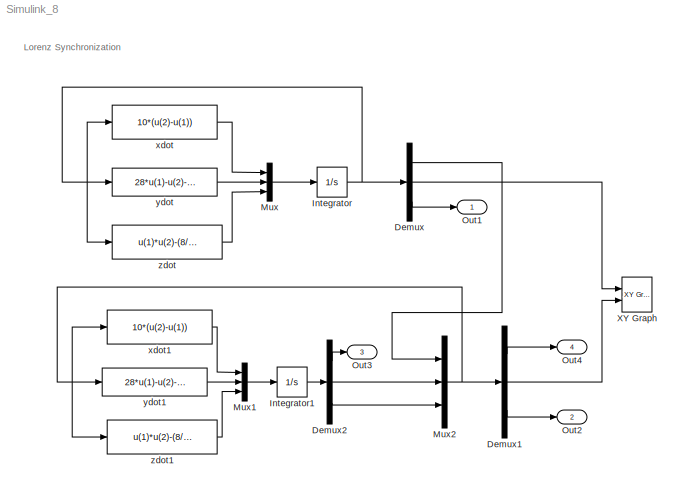
MODEL Simulink_8
KIND model
BLOCK [Demux] Demux
  Outputs = 3
  Ports = [1, 3]
  SID = 1
BLOCK [Demux] Demux1
  Outputs = 3
  Ports = [1, 3]
  SID = 2
BLOCK [Demux] Demux2
  Outputs = 3
  Ports = [1, 3]
  SID = 3
BLOCK [Integrator] Integrator
  InitialCondition = [15 20 30]
  LowerSaturationLimit = 0
  Ports = [1, 1]
  SID = 4
  UpperSaturationLimit = 50
BLOCK [Integrator] Integrator1
  InitialCondition = [17 23 33]
  LowerSaturationLimit = 0
  Ports = [1, 1]
  SID = 5
  UpperSaturationLimit = 50
BLOCK [Mux] Mux
  DisplayOption = bar
  Inputs = 3
  Ports = [3, 1]
  SID = 6
BLOCK [Mux] Mux1
  DisplayOption = bar
  Inputs = 3
  Ports = [3, 1]
  SID = 7
BLOCK [Mux] Mux2
  DisplayOption = bar
  Inputs = 3
  Ports = [3, 1]
  SID = 8
BLOCK [Outport] Out1
  IconDisplay = Port number
  SID = 16
BLOCK [Outport] Out2
  IconDisplay = Port number
  Port = 2
  SID = 17
BLOCK [Outport] Out3
  IconDisplay = Port number
  Port = 3
  SID = 18
BLOCK [Outport] Out4
  IconDisplay = Port number
  Port = 4
  SID = 19
BLOCK [Reference] XY Graph  REF=simulink/Sinks/XY Graph
  Ports = [2]
  SID = 9
  SourceBlock = simulink/Sinks/XY Graph
  SourceProductBaseCode = SL
  SourceProductName = Simulink
  SourceType = XY scope.
  st = -1
  xmax = 50
  xmin = -50
  ymax = 50
  ymin = -50
BLOCK [Fcn] xdot
  Description = sdhdkbkdf
  Expr = 10*(u(2)-u(1))
  SID = 10
BLOCK [Fcn] xdot1
  Description = sdhdkbkdf
  Expr = 10*(u(2)-u(1))
  SID = 11
BLOCK [Fcn] ydot
  Expr = 28*u(1)-u(2)-u(1)*u(3)
  SID = 12
BLOCK [Fcn] ydot1
  Expr = 28*u(1)-u(2)-u(1)*u(3)
  SID = 13
BLOCK [Fcn] zdot
  Expr = u(1)*u(2)-(8/3)*u(3)
  SID = 14
BLOCK [Fcn] zdot1
  Expr = u(1)*u(2)-(8/3)*u(3)
  SID = 15
ANNOTATION (root): Lorenz Synchronization
LINE Demux1:1 -> Out4:1
LINE Demux1:2 -> XY Graph:2
LINE Demux1:3 -> Out2:1
LINE Demux2:1 -> Out3:1
LINE Demux2:2 -> Mux2:2
LINE Demux2:3 -> Mux2:3
LINE Demux:1 -> Mux2:1
LINE Demux:2 -> XY Graph:1
LINE Demux:3 -> Out1:1
LINE Integrator1:1 -> Demux2:1
NET Integrator:1 -> Demux:1, xdot:1, ydot:1, zdot:1
LINE Mux1:1 -> Integrator1:1
NET Mux2:1 -> Demux1:1, xdot1:1, ydot1:1, zdot1:1
LINE Mux:1 -> Integrator:1
LINE xdot1:1 -> Mux1:1
LINE xdot:1 -> Mux:1
LINE ydot1:1 -> Mux1:2
LINE ydot:1 -> Mux:2
LINE zdot1:1 -> Mux1:3
LINE zdot:1 -> Mux:3
note: NET lines group one-source signal fan-out (src -> all destinations, sorted); 1:1 wires keep LINE
